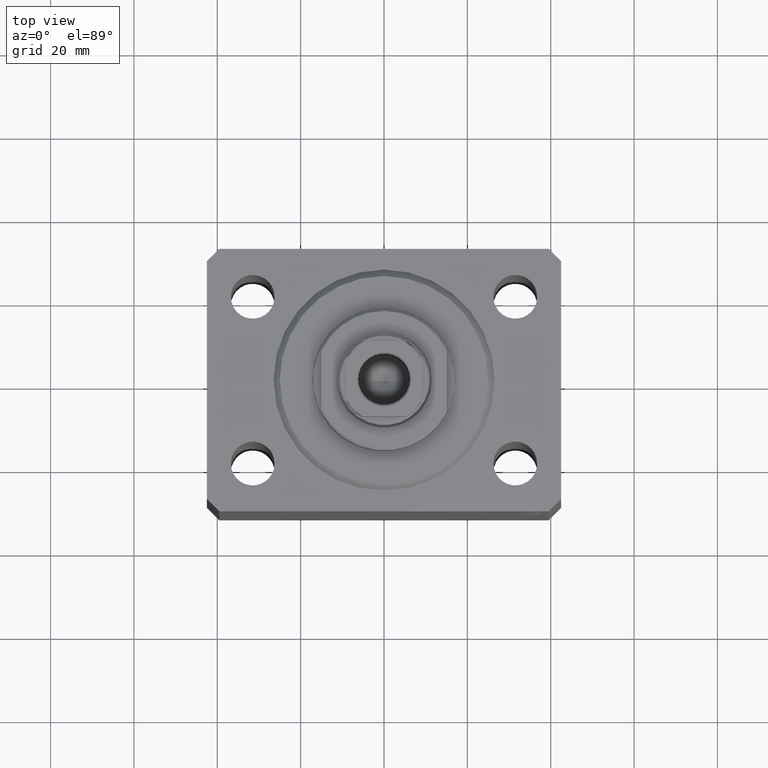
[diagram: clean part render]
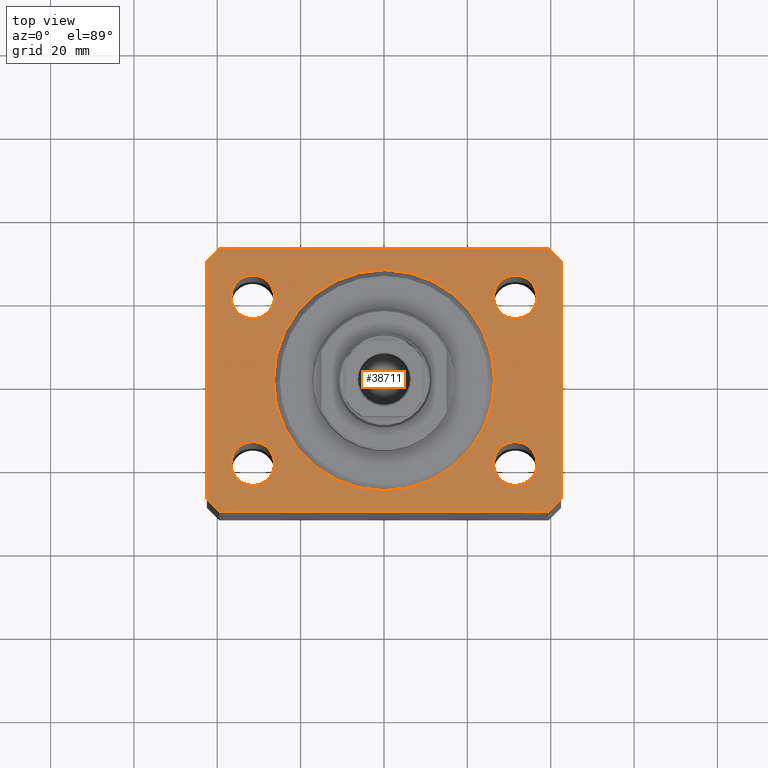
[diagram: same view with one face highlighted and labeled with its STEP entity id]
A machine part, top view. The second image highlights one B-rep face of the part: STEP entity #38711.
In plain terms, the highlighted planar face has unit normal (0, 0, 1).
Its self-contained STEP definition (entity closure, byte-faithful):
#203 = CARTESIAN_POINT ( 'NONE',  ( -31.49999999999999289, -20.00000000000000355, 0.000000000000000000 ) ) ;
#407 = CARTESIAN_POINT ( 'NONE',  ( -42.50000000000000000, 28.50000000000000000, 0.000000000000000000 ) ) ;
#660 = CARTESIAN_POINT ( 'NONE',  ( -39.50000000000000711, -31.50000000000000000, 0.000000000000000000 ) ) ;
#819 = CARTESIAN_POINT ( 'NONE',  ( 31.50000000000000000, 19.99999999999999289, 0.000000000000000000 ) ) ;
#965 = CARTESIAN_POINT ( 'NONE',  ( 26.24999999999999645, -20.00000000000000355, 0.000000000000000000 ) ) ;
#1482 = AXIS2_PLACEMENT_3D ( 'NONE', #203, #30405, #27251 ) ;
#1497 = EDGE_CURVE ( 'NONE', #10860, #13485, #18926, .T. ) ;
#1508 = DIRECTION ( 'NONE',  ( 0.000000000000000000, 0.000000000000000000, 1.000000000000000000 ) ) ;
#1877 = CARTESIAN_POINT ( 'NONE',  ( 42.50000000000000711, -28.50000000000000355, 0.000000000000000000 ) ) ;
#1903 = VERTEX_POINT ( 'NONE', #33977 ) ;
#2706 = AXIS2_PLACEMENT_3D ( 'NONE', #40275, #36450, #6242 ) ;
#2741 = EDGE_CURVE ( 'NONE', #13485, #34224, #3090, .T. ) ;
#2901 = FACE_BOUND ( 'NONE', #26284, .T. ) ;
#3090 = LINE ( 'NONE', #44351, #31130 ) ;
#3876 = AXIS2_PLACEMENT_3D ( 'NONE', #11358, #21942, #35703 ) ;
#4160 = DIRECTION ( 'NONE',  ( -1.000000000000000000, 0.000000000000000000, 0.000000000000000000 ) ) ;
#4434 = DIRECTION ( 'NONE',  ( 1.000000000000000000, 0.000000000000000000, 0.000000000000000000 ) ) ;
#4481 = EDGE_CURVE ( 'NONE', #10539, #15259, #22136, .T. ) ;
#5037 = ORIENTED_EDGE ( 'NONE', *, *, #16839, .T. ) ;
#5142 = LINE ( 'NONE', #42555, #12158 ) ;
#5151 = VECTOR ( 'NONE', #41438, 1000.000000000000000 ) ;
#5445 = CARTESIAN_POINT ( 'NONE',  ( -36.75000000000000000, 19.99999999999999645, 0.000000000000000000 ) ) ;
#5614 = ORIENTED_EDGE ( 'NONE', *, *, #42505, .F. ) ;
#6125 = CIRCLE ( 'NONE', #29133, 5.249999999999997335 ) ;
#6134 = CARTESIAN_POINT ( 'NONE',  ( -31.50000000000000000, 19.99999999999999645, 0.000000000000000000 ) ) ;
#6203 = CARTESIAN_POINT ( 'NONE',  ( 42.50000000000051870, 28.49999999999995381, 0.000000000000000000 ) ) ;
#6242 = DIRECTION ( 'NONE',  ( 1.000000000000000000, 0.000000000000000000, 0.000000000000000000 ) ) ;
#6617 = CIRCLE ( 'NONE', #31810, 5.249999999999997335 ) ;
#6916 = DIRECTION ( 'NONE',  ( 1.000000000000000000, 0.000000000000000000, 0.000000000000000000 ) ) ;
#6971 = FACE_OUTER_BOUND ( 'NONE', #14692, .T. ) ;
#7662 = DIRECTION ( 'NONE',  ( 0.000000000000000000, 0.000000000000000000, 1.000000000000000000 ) ) ;
#7766 = CARTESIAN_POINT ( 'NONE',  ( 36.74999999999999289, -20.00000000000000355, 0.000000000000000000 ) ) ;
#7780 = VERTEX_POINT ( 'NONE', #17561 ) ;
#7862 = EDGE_CURVE ( 'NONE', #35105, #23345, #5142, .T. ) ;
#8416 = CARTESIAN_POINT ( 'NONE',  ( -26.24999999999999289, -20.00000000000000355, 0.000000000000000000 ) ) ;
#8563 = CARTESIAN_POINT ( 'NONE',  ( 39.50000000000000711, -31.50000000000000000, 0.000000000000000000 ) ) ;
#8815 = DIRECTION ( 'NONE',  ( 0.000000000000000000, 0.000000000000000000, 1.000000000000000000 ) ) ;
#9255 = CARTESIAN_POINT ( 'NONE',  ( -31.50000000000000000, 19.99999999999999645, 0.000000000000000000 ) ) ;
#9420 = VERTEX_POINT ( 'NONE', #43112 ) ;
#10340 = AXIS2_PLACEMENT_3D ( 'NONE', #9255, #8815, #22554 ) ;
#10539 = VERTEX_POINT ( 'NONE', #7766 ) ;
#10860 = VERTEX_POINT ( 'NONE', #31725 ) ;
#11358 = CARTESIAN_POINT ( 'NONE',  ( -31.49999999999999289, -20.00000000000000355, 0.000000000000000000 ) ) ;
#11592 = ORIENTED_EDGE ( 'NONE', *, *, #12568, .T. ) ;
#12005 = EDGE_CURVE ( 'NONE', #33820, #7780, #23415, .T. ) ;
#12075 = ORIENTED_EDGE ( 'NONE', *, *, #7862, .T. ) ;
#12158 = VECTOR ( 'NONE', #22044, 1000.000000000000000 ) ;
#12568 = EDGE_CURVE ( 'NONE', #18719, #33820, #35256, .T. ) ;
#13195 = AXIS2_PLACEMENT_3D ( 'NONE', #31776, #7662, #28392 ) ;
#13485 = VERTEX_POINT ( 'NONE', #1877 ) ;
#13500 = PLANE ( 'NONE',  #35353 ) ;
#13750 = EDGE_CURVE ( 'NONE', #19284, #9420, #39570, .T. ) ;
#13863 = EDGE_CURVE ( 'NONE', #23345, #10860, #41684, .T. ) ;
#14572 = DIRECTION ( 'NONE',  ( 0.000000000000000000, 0.000000000000000000, 1.000000000000000000 ) ) ;
#14692 = EDGE_LOOP ( 'NONE', ( #11592, #21129, #43478, #12075, #16475, #42176, #30380, #5037 ) ) ;
#15259 = VERTEX_POINT ( 'NONE', #965 ) ;
#16473 = DIRECTION ( 'NONE',  ( 0.000000000000000000, 0.000000000000000000, 1.000000000000000000 ) ) ;
#16475 = ORIENTED_EDGE ( 'NONE', *, *, #13863, .T. ) ;
#16713 = EDGE_CURVE ( 'NONE', #29380, #29603, #20922, .T. ) ;
#16747 = ORIENTED_EDGE ( 'NONE', *, *, #43077, .F. ) ;
#16839 = EDGE_CURVE ( 'NONE', #34224, #18719, #21373, .T. ) ;
#17491 = CARTESIAN_POINT ( 'NONE',  ( 0.000000000000000000, 0.000000000000000000, 0.000000000000000000 ) ) ;
#17561 = CARTESIAN_POINT ( 'NONE',  ( -42.50000000000000000, 28.50000000000000000, 0.000000000000000000 ) ) ;
#17753 = LINE ( 'NONE', #407, #5151 ) ;
#18247 = CIRCLE ( 'NONE', #10340, 5.250000000000000888 ) ;
#18719 = VERTEX_POINT ( 'NONE', #32328 ) ;
#18926 = LINE ( 'NONE', #8563, #20301 ) ;
#19284 = VERTEX_POINT ( 'NONE', #38290 ) ;
#19321 = EDGE_CURVE ( 'NONE', #7780, #35105, #17753, .T. ) ;
#19699 = CIRCLE ( 'NONE', #13195, 5.249999999999997335 ) ;
#19869 = DIRECTION ( 'NONE',  ( 1.000000000000000000, 0.000000000000000000, 0.000000000000000000 ) ) ;
#20301 = VECTOR ( 'NONE', #22971, 1000.000000000000000 ) ;
#20442 = DIRECTION ( 'NONE',  ( 8.886653596232072440E-15, 1.000000000000000000, 0.000000000000000000 ) ) ;
#20708 = CARTESIAN_POINT ( 'NONE',  ( 0.000000000000000000, 0.000000000000000000, 0.000000000000000000 ) ) ;
#20821 = VECTOR ( 'NONE', #4160, 1000.000000000000000 ) ;
#20922 = CIRCLE ( 'NONE', #1482, 5.250000000000000888 ) ;
#21129 = ORIENTED_EDGE ( 'NONE', *, *, #12005, .T. ) ;
#21279 = CARTESIAN_POINT ( 'NONE',  ( 39.50000000000056843, 31.50000000000000000, 0.000000000000000000 ) ) ;
#21373 = LINE ( 'NONE', #34694, #34606 ) ;
#21614 = DIRECTION ( 'NONE',  ( 1.000000000000000000, 0.000000000000000000, 0.000000000000000000 ) ) ;
#21799 = DIRECTION ( 'NONE',  ( 1.000000000000000000, 0.000000000000000000, 0.000000000000000000 ) ) ;
#21866 = CARTESIAN_POINT ( 'NONE',  ( -39.50000000000000711, 31.50000000000000000, 0.000000000000000000 ) ) ;
#21942 = DIRECTION ( 'NONE',  ( 0.000000000000000000, 0.000000000000000000, 1.000000000000000000 ) ) ;
#22044 = DIRECTION ( 'NONE',  ( 0.7071067811865471286, -0.7071067811865479058, 0.000000000000000000 ) ) ;
#22136 = CIRCLE ( 'NONE', #2706, 5.249999999999997335 ) ;
#22453 = ORIENTED_EDGE ( 'NONE', *, *, #24482, .F. ) ;
#22554 = DIRECTION ( 'NONE',  ( 1.000000000000000000, 0.000000000000000000, 0.000000000000000000 ) ) ;
#22971 = DIRECTION ( 'NONE',  ( 0.7071067811865483499, 0.7071067811865466846, 0.000000000000000000 ) ) ;
#23345 = VERTEX_POINT ( 'NONE', #25810 ) ;
#23415 = LINE ( 'NONE', #35284, #43104 ) ;
#24098 = FACE_BOUND ( 'NONE', #40416, .T. ) ;
#24127 = CARTESIAN_POINT ( 'NONE',  ( 0.000000000000000000, 0.000000000000000000, 0.000000000000000000 ) ) ;
#24224 = CARTESIAN_POINT ( 'NONE',  ( -42.50000000000000000, -28.50000000000000000, 0.000000000000000000 ) ) ;
#24317 = FACE_BOUND ( 'NONE', #28873, .T. ) ;
#24482 = EDGE_CURVE ( 'NONE', #40711, #27183, #18247, .T. ) ;
#24625 = AXIS2_PLACEMENT_3D ( 'NONE', #6134, #16473, #19869 ) ;
#24699 = EDGE_CURVE ( 'NONE', #15259, #10539, #19699, .T. ) ;
#25810 = CARTESIAN_POINT ( 'NONE',  ( -39.50000000000000711, -31.50000000000000000, 0.000000000000000000 ) ) ;
#25950 = ORIENTED_EDGE ( 'NONE', *, *, #16713, .F. ) ;
#26284 = EDGE_LOOP ( 'NONE', ( #25950, #27572 ) ) ;
#26324 = ORIENTED_EDGE ( 'NONE', *, *, #43443, .F. ) ;
#27183 = VERTEX_POINT ( 'NONE', #5445 ) ;
#27251 = DIRECTION ( 'NONE',  ( 1.000000000000000000, 0.000000000000000000, 0.000000000000000000 ) ) ;
#27572 = ORIENTED_EDGE ( 'NONE', *, *, #29345, .F. ) ;
#27590 = VERTEX_POINT ( 'NONE', #43241 ) ;
#27856 = EDGE_LOOP ( 'NONE', ( #28337, #26324 ) ) ;
#27907 = ORIENTED_EDGE ( 'NONE', *, *, #24699, .F. ) ;
#28337 = ORIENTED_EDGE ( 'NONE', *, *, #13750, .F. ) ;
#28392 = DIRECTION ( 'NONE',  ( 1.000000000000000000, 0.000000000000000000, 0.000000000000000000 ) ) ;
#28873 = EDGE_LOOP ( 'NONE', ( #34669, #5614 ) ) ;
#29133 = AXIS2_PLACEMENT_3D ( 'NONE', #819, #14572, #4434 ) ;
#29345 = EDGE_CURVE ( 'NONE', #29603, #29380, #43465, .T. ) ;
#29380 = VERTEX_POINT ( 'NONE', #8416 ) ;
#29603 = VERTEX_POINT ( 'NONE', #33428 ) ;
#30377 = AXIS2_PLACEMENT_3D ( 'NONE', #17491, #41166, #6916 ) ;
#30380 = ORIENTED_EDGE ( 'NONE', *, *, #2741, .T. ) ;
#30405 = DIRECTION ( 'NONE',  ( 0.000000000000000000, 0.000000000000000000, 1.000000000000000000 ) ) ;
#30432 = DIRECTION ( 'NONE',  ( 1.000000000000000000, 0.000000000000000000, 0.000000000000000000 ) ) ;
#31114 = DIRECTION ( 'NONE',  ( 0.000000000000000000, 0.000000000000000000, 1.000000000000000000 ) ) ;
#31130 = VECTOR ( 'NONE', #20442, 1000.000000000000000 ) ;
#31725 = CARTESIAN_POINT ( 'NONE',  ( 39.50000000000000711, -31.50000000000000000, 0.000000000000000000 ) ) ;
#31776 = CARTESIAN_POINT ( 'NONE',  ( 31.49999999999999289, -20.00000000000000355, 0.000000000000000000 ) ) ;
#31810 = AXIS2_PLACEMENT_3D ( 'NONE', #38722, #1508, #21799 ) ;
#31842 = CIRCLE ( 'NONE', #30377, 26.50000000000000355 ) ;
#32328 = CARTESIAN_POINT ( 'NONE',  ( 39.50000000000056843, 31.50000000000000000, 0.000000000000000000 ) ) ;
#32378 = AXIS2_PLACEMENT_3D ( 'NONE', #24127, #31114, #30432 ) ;
#33428 = CARTESIAN_POINT ( 'NONE',  ( -36.74999999999999289, -20.00000000000000355, 0.000000000000000000 ) ) ;
#33820 = VERTEX_POINT ( 'NONE', #21866 ) ;
#33977 = CARTESIAN_POINT ( 'NONE',  ( 36.75000000000000000, 19.99999999999999289, 0.000000000000000000 ) ) ;
#34224 = VERTEX_POINT ( 'NONE', #6203 ) ;
#34381 = ORIENTED_EDGE ( 'NONE', *, *, #4481, .F. ) ;
#34467 = DIRECTION ( 'NONE',  ( 0.000000000000000000, 0.000000000000000000, 1.000000000000000000 ) ) ;
#34606 = VECTOR ( 'NONE', #35584, 1000.000000000000114 ) ;
#34669 = ORIENTED_EDGE ( 'NONE', *, *, #34869, .F. ) ;
#34694 = CARTESIAN_POINT ( 'NONE',  ( 42.50000000000051870, 28.49999999999995381, 0.000000000000000000 ) ) ;
#34869 = EDGE_CURVE ( 'NONE', #1903, #27590, #6125, .T. ) ;
#35105 = VERTEX_POINT ( 'NONE', #24224 ) ;
#35256 = LINE ( 'NONE', #21279, #20821 ) ;
#35284 = CARTESIAN_POINT ( 'NONE',  ( -39.50000000000000711, 31.50000000000000000, 0.000000000000000000 ) ) ;
#35353 = AXIS2_PLACEMENT_3D ( 'NONE', #20708, #34467, #37407 ) ;
#35584 = DIRECTION ( 'NONE',  ( -0.7071067811865356934, 0.7071067811865594521, 0.000000000000000000 ) ) ;
#35703 = DIRECTION ( 'NONE',  ( 1.000000000000000000, 0.000000000000000000, 0.000000000000000000 ) ) ;
#36450 = DIRECTION ( 'NONE',  ( 0.000000000000000000, 0.000000000000000000, 1.000000000000000000 ) ) ;
#37407 = DIRECTION ( 'NONE',  ( 1.000000000000000000, 0.000000000000000000, -0.000000000000000000 ) ) ;
#37623 = DIRECTION ( 'NONE',  ( -0.7071067811865471286, -0.7071067811865479058, 0.000000000000000000 ) ) ;
#37858 = FACE_BOUND ( 'NONE', #38831, .T. ) ;
#38290 = CARTESIAN_POINT ( 'NONE',  ( 26.50000000000000355, 0.000000000000000000, 0.000000000000000000 ) ) ;
#38711 = ADVANCED_FACE ( 'NONE', ( #44389, #2901, #24098, #24317, #37858, #6971 ), #13500, .T. ) ;
#38722 = CARTESIAN_POINT ( 'NONE',  ( 31.50000000000000000, 19.99999999999999289, 0.000000000000000000 ) ) ;
#38831 = EDGE_LOOP ( 'NONE', ( #22453, #16747 ) ) ;
#39570 = CIRCLE ( 'NONE', #32378, 26.50000000000000355 ) ;
#40275 = CARTESIAN_POINT ( 'NONE',  ( 31.49999999999999289, -20.00000000000000355, 0.000000000000000000 ) ) ;
#40416 = EDGE_LOOP ( 'NONE', ( #34381, #27907 ) ) ;
#40711 = VERTEX_POINT ( 'NONE', #41000 ) ;
#41000 = CARTESIAN_POINT ( 'NONE',  ( -26.25000000000000000, 19.99999999999999645, 0.000000000000000000 ) ) ;
#41166 = DIRECTION ( 'NONE',  ( 0.000000000000000000, 0.000000000000000000, 1.000000000000000000 ) ) ;
#41438 = DIRECTION ( 'NONE',  ( 0.000000000000000000, -1.000000000000000000, 0.000000000000000000 ) ) ;
#41684 = LINE ( 'NONE', #660, #43177 ) ;
#41902 = CIRCLE ( 'NONE', #24625, 5.250000000000000888 ) ;
#42176 = ORIENTED_EDGE ( 'NONE', *, *, #1497, .T. ) ;
#42505 = EDGE_CURVE ( 'NONE', #27590, #1903, #6617, .T. ) ;
#42555 = CARTESIAN_POINT ( 'NONE',  ( -42.50000000000000000, -28.50000000000000000, 0.000000000000000000 ) ) ;
#43077 = EDGE_CURVE ( 'NONE', #27183, #40711, #41902, .T. ) ;
#43104 = VECTOR ( 'NONE', #37623, 1000.000000000000000 ) ;
#43112 = CARTESIAN_POINT ( 'NONE',  ( -26.50000000000000355, 3.245314017740486554E-15, 0.000000000000000000 ) ) ;
#43177 = VECTOR ( 'NONE', #21614, 1000.000000000000000 ) ;
#43241 = CARTESIAN_POINT ( 'NONE',  ( 26.25000000000000355, 19.99999999999999289, 0.000000000000000000 ) ) ;
#43443 = EDGE_CURVE ( 'NONE', #9420, #19284, #31842, .T. ) ;
#43465 = CIRCLE ( 'NONE', #3876, 5.250000000000000888 ) ;
#43478 = ORIENTED_EDGE ( 'NONE', *, *, #19321, .T. ) ;
#44351 = CARTESIAN_POINT ( 'NONE',  ( 42.50000000000000711, -28.50000000000000355, 0.000000000000000000 ) ) ;
#44389 = FACE_BOUND ( 'NONE', #27856, .T. ) ;